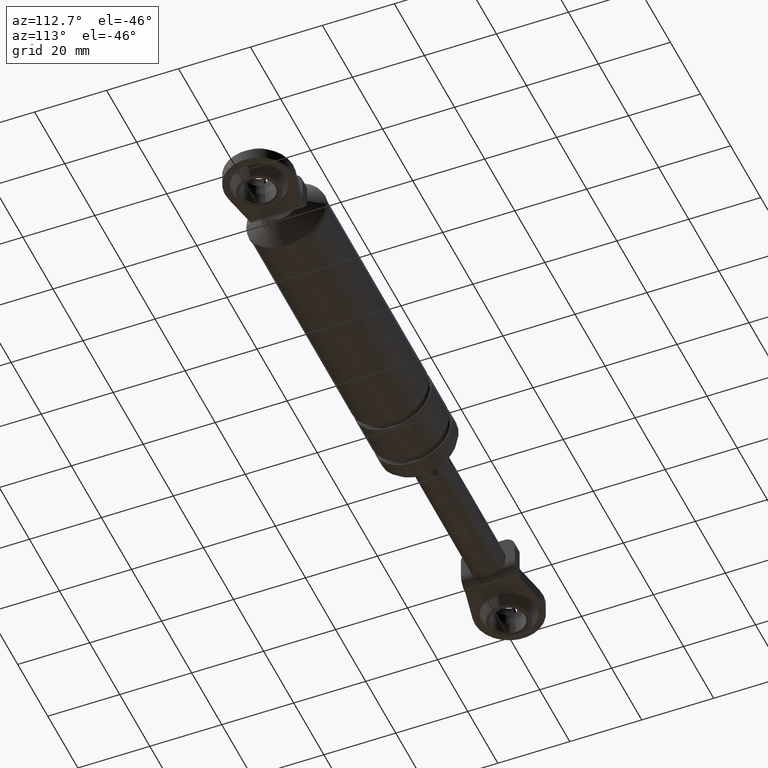
[diagram: clean part render]
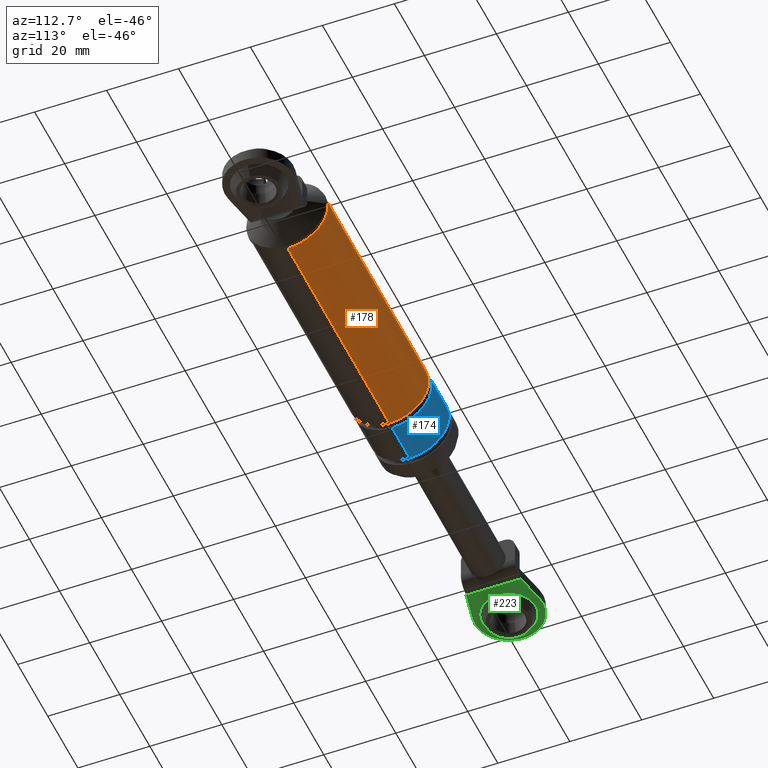
[diagram: same view with three faces highlighted in distinct colors, each labeled with its STEP entity id]
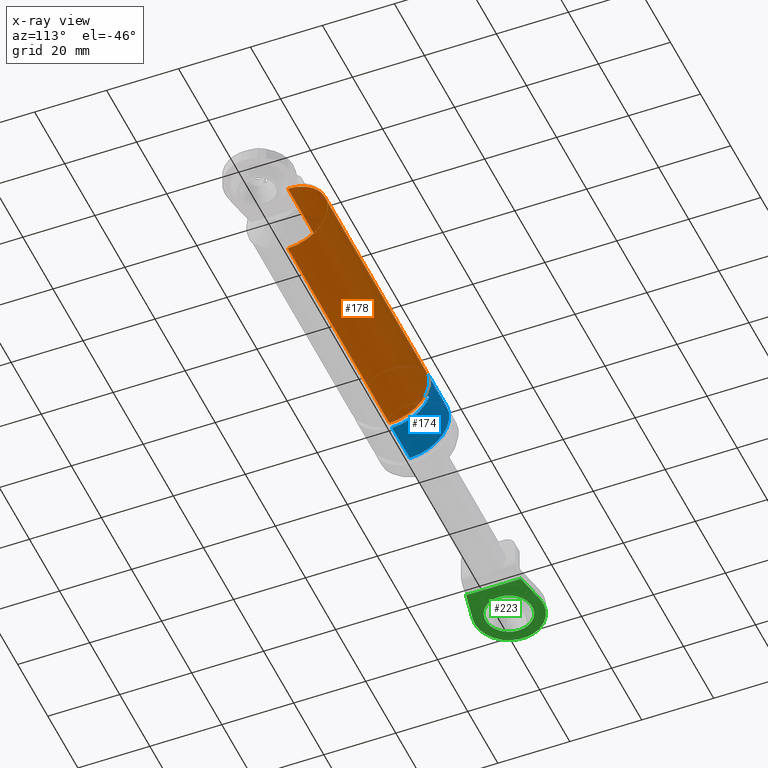
[diagram: x-ray of the same camera — body ghosted, the three highlighted faces saturated]
A machine part, auxiliary view with three faces highlighted in distinct colors.
The next image is the same camera in x-ray (body ghosted, the three faces saturated) — at least one of them is partly hidden behind the body in this view.
Their STEP definitions:

[orange] entity #178 — the highlighted cylindrical surface (partial cylindrical patch) has radius 11 mm, axis along (1, 0, 0).
#178=ADVANCED_FACE('',(#938),#937,.T.);
#937=CYLINDRICAL_SURFACE('',#2287,1.10000000001E+001);
#938=FACE_OUTER_BOUND('',#2288,.T.);
#2284=CARTESIAN_POINT('',(0.00000000000E+000,0.00000000000E+000,1.14952983996E+002));
#2285=DIRECTION('',(1.00000000000E+000,-0.00000000000E+000,-0.00000000000E+000));
#2286=DIRECTION('',(-0.00000000000E+000,-0.00000000000E+000,-1.00000000000E+000));
#2287=AXIS2_PLACEMENT_3D('',#2284,#2285,#2286);
#2288=EDGE_LOOP('',(#3192,#3193,#3194,#3195));
#3192=ORIENTED_EDGE('',*,*,#3808,.T.);
#3193=ORIENTED_EDGE('',*,*,#3809,.F.);
#3194=ORIENTED_EDGE('',*,*,#3712,.F.);
#3195=ORIENTED_EDGE('',*,*,#3810,.T.);
#3712=EDGE_CURVE('',#4577,#4578,#4579,.T.);
#3808=EDGE_CURVE('',#5200,#5201,#5202,.T.);
#3809=EDGE_CURVE('',#4578,#5201,#5208,.T.);
#3810=EDGE_CURVE('',#4577,#5200,#5214,.T.);
#4577=VERTEX_POINT('',#6938);
#4578=VERTEX_POINT('',#6939);
#4579=CIRCLE('',#6943,1.10000000002E+001);
#5200=VERTEX_POINT('',#7360);
#5201=VERTEX_POINT('',#7361);
#5202=CIRCLE('',#7365,1.10000000000E+001);
#5208=(BOUNDED_CURVE() B_SPLINE_CURVE(1,(#7366,#7367),.UNSPECIFIED.,.F.,.F.) B_SPLINE_CURVE_WITH_KNOTS((2,2),(8.33333332085E-002,9.16666666563E-001),.UNSPECIFIED.) CURVE() GEOMETRIC_REPRESENTATION_ITEM() RATIONAL_B_SPLINE_CURVE((1.00000000000E+000,1.00000000000E+000)) REPRESENTATION_ITEM('') );
#5214=(BOUNDED_CURVE() B_SPLINE_CURVE(1,(#7368,#7369),.UNSPECIFIED.,.F.,.F.) B_SPLINE_CURVE_WITH_KNOTS((2,2),(8.33333333333E-002,9.16666666667E-001),.UNSPECIFIED.) CURVE() GEOMETRIC_REPRESENTATION_ITEM() RATIONAL_B_SPLINE_CURVE((7.50000000000E-001,7.50000000000E-001)) REPRESENTATION_ITEM('') );
#6938=CARTESIAN_POINT('',(1.99842105705E+002,0.00000000000E+000,1.25952983997E+002));
#6939=CARTESIAN_POINT('',(1.99842105705E+002,5.92118946467E-016,1.03952983996E+002));
#6940=CARTESIAN_POINT('',(1.99842105705E+002,0.00000000000E+000,1.14952983996E+002));
#6941=DIRECTION('',(-1.00000000000E+000,0.00000000000E+000,0.00000000000E+000));
#6942=DIRECTION('',(0.00000000000E+000,-1.22460635382E-016,1.00000000000E+000));
#6943=AXIS2_PLACEMENT_3D('',#6940,#6941,#6942);
#7360=CARTESIAN_POINT('',(2.67336554007E+002,0.00000000000E+000,1.25952983996E+002));
#7361=CARTESIAN_POINT('',(2.67336554007E+002,5.92118946467E-016,1.03952983996E+002));
#7362=CARTESIAN_POINT('',(2.67336554007E+002,0.00000000000E+000,1.14952983996E+002));
#7363=DIRECTION('',(-1.00000000000E+000,0.00000000000E+000,0.00000000000E+000));
#7364=DIRECTION('',(0.00000000000E+000,-1.22460635382E-016,1.00000000000E+000));
#7365=AXIS2_PLACEMENT_3D('',#7362,#7363,#7364);
#7366=CARTESIAN_POINT('',(1.99842105695E+002,0.00000000000E+000,1.03952983996E+002));
#7367=CARTESIAN_POINT('',(2.67336553999E+002,0.00000000000E+000,1.03952983996E+002));
#7368=CARTESIAN_POINT('',(1.99842105705E+002,0.00000000000E+000,1.25952983996E+002));
#7369=CARTESIAN_POINT('',(2.67336554007E+002,0.00000000000E+000,1.25952983996E+002));

[blue] entity #174 — the highlighted cylindrical surface (partial cylindrical patch) has radius 11 mm, axis along (1, 0, 0).
#174=ADVANCED_FACE('',(#898),#897,.T.);
#897=CYLINDRICAL_SURFACE('',#2225,1.10000000000E+001);
#898=FACE_OUTER_BOUND('',#2226,.T.);
#2222=CARTESIAN_POINT('',(0.00000000000E+000,0.00000000000E+000,1.14952983996E+002));
#2223=DIRECTION('',(1.00000000000E+000,-0.00000000000E+000,-0.00000000000E+000));
#2224=DIRECTION('',(-0.00000000000E+000,-0.00000000000E+000,-1.00000000000E+000));
#2225=AXIS2_PLACEMENT_3D('',#2222,#2223,#2224);
#2226=EDGE_LOOP('',(#3176,#3177,#3178,#3179));
#3176=ORIENTED_EDGE('',*,*,#3709,.T.);
#3177=ORIENTED_EDGE('',*,*,#3804,.F.);
#3178=ORIENTED_EDGE('',*,*,#3704,.F.);
#3179=ORIENTED_EDGE('',*,*,#3805,.T.);
#3704=EDGE_CURVE('',#4521,#4522,#4523,.T.);
#3709=EDGE_CURVE('',#4550,#4549,#4557,.T.);
#3804=EDGE_CURVE('',#4522,#4549,#5176,.T.);
#3805=EDGE_CURVE('',#4521,#4550,#5182,.T.);
#4521=VERTEX_POINT('',#6898);
#4522=VERTEX_POINT('',#6899);
#4523=CIRCLE('',#6903,1.10000000000E+001);
#4549=VERTEX_POINT('',#6918);
#4550=VERTEX_POINT('',#6919);
#4557=CIRCLE('',#6927,1.10000000000E+001);
#5176=(BOUNDED_CURVE() B_SPLINE_CURVE(1,(#7346,#7347),.UNSPECIFIED.,.F.,.F.) B_SPLINE_CURVE_WITH_KNOTS((2,2),(8.33333343261E-002,9.16666667006E-001),.UNSPECIFIED.) CURVE() GEOMETRIC_REPRESENTATION_ITEM() RATIONAL_B_SPLINE_CURVE((1.00000000000E+000,1.00000000000E+000)) REPRESENTATION_ITEM('') );
#5182=(BOUNDED_CURVE() B_SPLINE_CURVE(1,(#7348,#7349),.UNSPECIFIED.,.F.,.F.) B_SPLINE_CURVE_WITH_KNOTS((2,2),(8.33333333333E-002,9.16666666667E-001),.UNSPECIFIED.) CURVE() GEOMETRIC_REPRESENTATION_ITEM() RATIONAL_B_SPLINE_CURVE((7.50000000000E-001,7.50000000000E-001)) REPRESENTATION_ITEM('') );
#6898=CARTESIAN_POINT('',(1.86342105705E+002,0.00000000000E+000,1.25952983996E+002));
#6899=CARTESIAN_POINT('',(1.86342105705E+002,5.92118946467E-016,1.03952983996E+002));
#6900=CARTESIAN_POINT('',(1.86342105705E+002,0.00000000000E+000,1.14952983996E+002));
#6901=DIRECTION('',(-1.00000000000E+000,0.00000000000E+000,0.00000000000E+000));
#6902=DIRECTION('',(0.00000000000E+000,-1.22460635382E-016,1.00000000000E+000));
#6903=AXIS2_PLACEMENT_3D('',#6900,#6901,#6902);
#6918=CARTESIAN_POINT('',(1.98042105705E+002,1.18423789293E-015,1.03952983996E+002));
#6919=CARTESIAN_POINT('',(1.98042105705E+002,0.00000000000E+000,1.25952983996E+002));
#6924=CARTESIAN_POINT('',(1.98042105705E+002,0.00000000000E+000,1.14952983996E+002));
#6925=DIRECTION('',(-1.00000000000E+000,0.00000000000E+000,0.00000000000E+000));
#6926=DIRECTION('',(0.00000000000E+000,-1.22460635382E-016,1.00000000000E+000));
#6927=AXIS2_PLACEMENT_3D('',#6924,#6925,#6926);
#7346=CARTESIAN_POINT('',(1.86342105719E+002,0.00000000000E+000,1.03952983996E+002));
#7347=CARTESIAN_POINT('',(1.98042105710E+002,0.00000000000E+000,1.03952983996E+002));
#7348=CARTESIAN_POINT('',(1.86342105705E+002,0.00000000000E+000,1.25952983996E+002));
#7349=CARTESIAN_POINT('',(1.98042105705E+002,0.00000000000E+000,1.25952983996E+002));

[green] entity #223 — the highlighted planar face has unit normal (0, 0, 1).
#223=ADVANCED_FACE('',(#1390,#1391),#1389,.F.);
#1389=PLANE('',#2600);
#1390=FACE_OUTER_BOUND('',#2601,.T.);
#1391=FACE_BOUND('',#2602,.T.);
#2597=CARTESIAN_POINT('',(1.08912105705E+002,-1.39488167529E+001,1.09452983996E+002));
#2598=DIRECTION('',(0.00000000000E+000,0.00000000000E+000,1.00000000000E+000));
#2599=DIRECTION('',(1.00000000000E+000,0.00000000000E+000,0.00000000000E+000));
#2600=AXIS2_PLACEMENT_3D('',#2597,#2598,#2599);
#2601=EDGE_LOOP('',(#3393,#3394,#3395,#3396,#3397,#3398));
#2602=EDGE_LOOP('',(#3399,#3400));
#3393=ORIENTED_EDGE('',*,*,#3921,.F.);
#3394=ORIENTED_EDGE('',*,*,#3922,.F.);
#3395=ORIENTED_EDGE('',*,*,#3923,.T.);
#3396=ORIENTED_EDGE('',*,*,#3924,.T.);
#3397=ORIENTED_EDGE('',*,*,#3925,.T.);
#3398=ORIENTED_EDGE('',*,*,#3920,.F.);
#3399=ORIENTED_EDGE('',*,*,#3926,.F.);
#3400=ORIENTED_EDGE('',*,*,#3927,.F.);
#3920=EDGE_CURVE('',#5943,#5935,#5950,.T.);
#3921=EDGE_CURVE('',#5956,#5943,#5957,.T.);
#3922=EDGE_CURVE('',#5963,#5956,#5964,.T.);
#3923=EDGE_CURVE('',#5963,#5970,#5971,.T.);
#3924=EDGE_CURVE('',#5970,#5977,#5978,.T.);
#3925=EDGE_CURVE('',#5977,#5935,#5984,.T.);
#3926=EDGE_CURVE('',#5990,#5991,#5992,.T.);
#3927=EDGE_CURVE('',#5991,#5990,#5998,.T.);
#5935=VERTEX_POINT('',#7854);
#5943=VERTEX_POINT('',#7860);
#5950=LINE('',#7864,#7865);
#5956=VERTEX_POINT('',#7867);
#5957=LINE('',#7868,#7869);
#5963=VERTEX_POINT('',#7871);
#5964=CIRCLE('',#7875,9.50000000000E+000);
#5970=VERTEX_POINT('',#7876);
#5971=LINE('',#7877,#7878);
#5977=VERTEX_POINT('',#7880);
#5978=LINE('',#7881,#7882);
#5984=LINE('',#7884,#7885);
#5990=VERTEX_POINT('',#7887);
#5991=VERTEX_POINT('',#7888);
#5992=CIRCLE('',#7892,6.50000000000E+000);
#5998=CIRCLE('',#7896,6.50000000000E+000);
#7854=CARTESIAN_POINT('',(1.30742105705E+002,-7.49999999939E+000,1.09452983996E+002));
#7860=CARTESIAN_POINT('',(1.31242105705E+002,-7.49999999939E+000,1.09452983996E+002));
#7864=CARTESIAN_POINT('',(1.31242105705E+002,-7.49999999939E+000,1.09452983996E+002));
#7865=VECTOR('',#7866,5.00000000038E-001);
#7866=DIRECTION('',(-1.00000000000E+000,6.28830321099E-012,0.00000000000E+000));
#7867=CARTESIAN_POINT('',(1.22333428881E+002,-9.30982795930E+000,1.09452983996E+002));
#7868=CARTESIAN_POINT('',(1.22333428881E+002,-9.30982795930E+000,1.09452983996E+002));
#7869=VECTOR('',#7870,9.09065454189E+000);
#7870=DIRECTION('',(9.79981890524E-001,1.99086650094E-001,0.00000000000E+000));
#7871=CARTESIAN_POINT('',(1.22333428881E+002,9.30982795930E+000,1.09452983996E+002));
#7872=CARTESIAN_POINT('',(1.20442105705E+002,-6.77440326058E-010,1.09452983996E+002));
#7873=DIRECTION('',(0.00000000000E+000,-0.00000000000E+000,1.00000000000E+000));
#7874=DIRECTION('',(1.99086650094E-001,9.79981890524E-001,0.00000000000E+000));
#7875=AXIS2_PLACEMENT_3D('',#7872,#7873,#7874);
#7876=CARTESIAN_POINT('',(1.31242105705E+002,7.49999999939E+000,1.09452983996E+002));
#7877=CARTESIAN_POINT('',(1.22333428881E+002,9.30982795930E+000,1.09452983996E+002));
#7878=VECTOR('',#7879,9.09065454189E+000);
#7879=DIRECTION('',(9.79981890524E-001,-1.99086650094E-001,0.00000000000E+000));
#7880=CARTESIAN_POINT('',(1.30742105705E+002,7.49999999939E+000,1.09452983996E+002));
#7881=CARTESIAN_POINT('',(1.31242105705E+002,7.49999999939E+000,1.09452983996E+002));
#7882=VECTOR('',#7883,5.00000000038E-001);
#7883=DIRECTION('',(-1.00000000000E+000,-6.28830321099E-012,0.00000000000E+000));
#7884=CARTESIAN_POINT('',(1.30742105705E+002,7.49999999939E+000,1.09452983996E+002));
#7885=VECTOR('',#7886,1.49999999988E+001);
#7886=DIRECTION('',(0.00000000000E+000,-1.00000000000E+000,0.00000000000E+000));
#7887=CARTESIAN_POINT('',(1.26942105705E+002,2.96059473233E-016,1.09452983996E+002));
#7888=CARTESIAN_POINT('',(1.13942105705E+002,0.00000000000E+000,1.09452983996E+002));
#7889=CARTESIAN_POINT('',(1.20442105705E+002,0.00000000000E+000,1.09452983996E+002));
#7890=DIRECTION('',(-0.00000000000E+000,0.00000000000E+000,-1.00000000000E+000));
#7891=DIRECTION('',(-1.00000000000E+000,-1.22460635382E-016,0.00000000000E+000));
#7892=AXIS2_PLACEMENT_3D('',#7889,#7890,#7891);
#7893=CARTESIAN_POINT('',(1.20442105705E+002,0.00000000000E+000,1.09452983996E+002));
#7894=DIRECTION('',(-0.00000000000E+000,0.00000000000E+000,-1.00000000000E+000));
#7895=DIRECTION('',(-1.00000000000E+000,-1.22460635382E-016,0.00000000000E+000));
#7896=AXIS2_PLACEMENT_3D('',#7893,#7894,#7895);